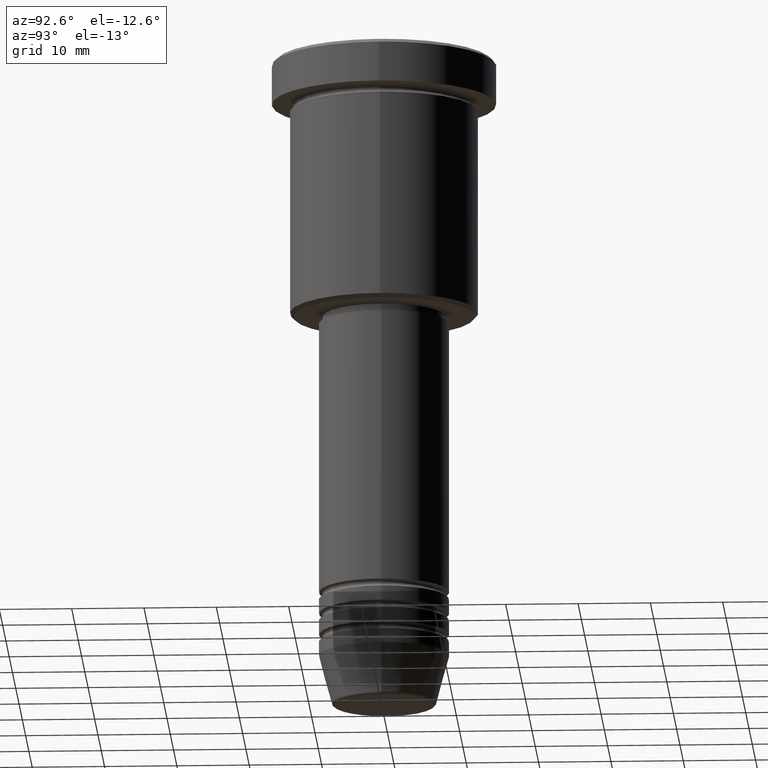
[diagram: clean part render]
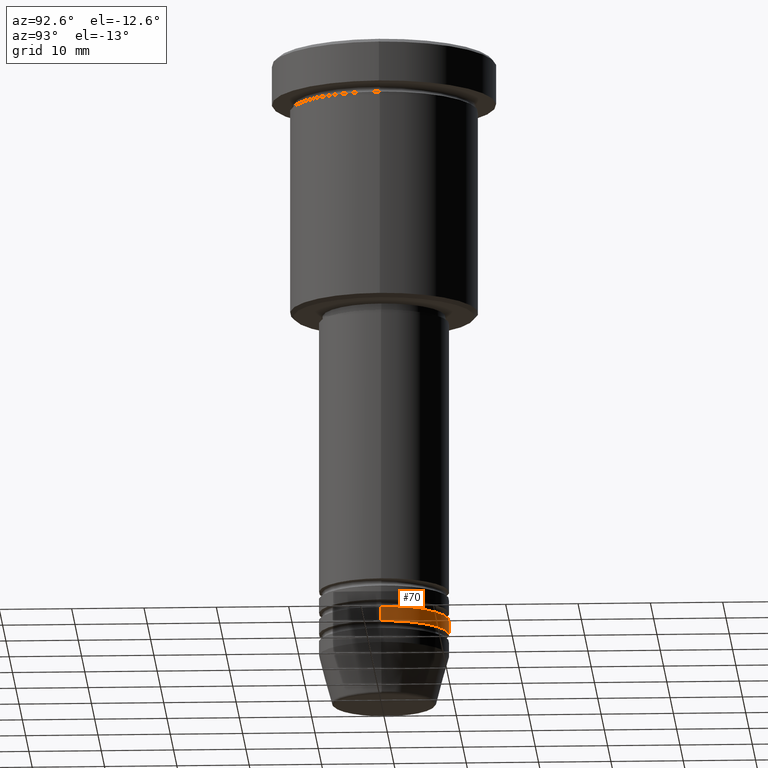
[diagram: same view with one face highlighted and labeled with its STEP entity id]
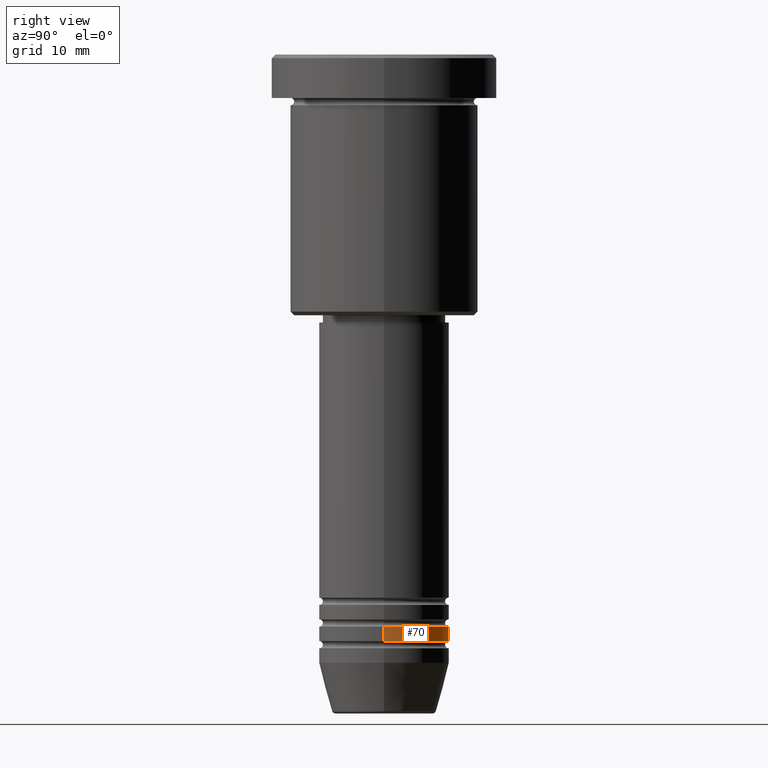
[diagram: same view with one face highlighted and labeled with its STEP entity id]
A machine part, auxiliary view. The second image highlights one B-rep face of the part: STEP entity #70.
A second angle (right view) of the same face is appended — the face is thin or edge-on in the first view.
In plain terms, the highlighted cylindrical surface (partial cylindrical patch) has radius 9 mm, axis along (-0, -0, 1).
Its self-contained STEP definition (entity closure, byte-faithful):
#9 = EDGE_CURVE ( 'NONE', #722, #741, #59, .T. ) ;
#47 = CYLINDRICAL_SURFACE ( 'NONE', #760, 9.000000000000000000 ) ;
#59 = LINE ( 'NONE', #595, #306 ) ;
#70 = ADVANCED_FACE ( 'NONE', ( #425 ), #47, .T. ) ;
#122 = DIRECTION ( 'NONE',  ( 1.000000000000000000, 0.000000000000000000, 0.000000000000000000 ) ) ;
#158 = DIRECTION ( 'NONE',  ( -0.000000000000000000, -0.000000000000000000, 1.000000000000000000 ) ) ;
#178 = ORIENTED_EDGE ( 'NONE', *, *, #905, .F. ) ;
#181 = EDGE_CURVE ( 'NONE', #1047, #904, #981, .T. ) ;
#204 = AXIS2_PLACEMENT_3D ( 'NONE', #243, #1174, #606 ) ;
#243 = CARTESIAN_POINT ( 'NONE',  ( 0.000000000000000000, 0.000000000000000000, -78.99999999999997158 ) ) ;
#260 = EDGE_CURVE ( 'NONE', #1047, #722, #364, .T. ) ;
#289 = CARTESIAN_POINT ( 'NONE',  ( 0.000000000000000000, 0.000000000000000000, -80.99999999999997158 ) ) ;
#306 = VECTOR ( 'NONE', #693, 1000.000000000000000 ) ;
#362 = CARTESIAN_POINT ( 'NONE',  ( 9.000000000000000000, 0.000000000000000000, 0.000000000000000000 ) ) ;
#364 = CIRCLE ( 'NONE', #626, 9.000000000000000000 ) ;
#425 = FACE_OUTER_BOUND ( 'NONE', #814, .T. ) ;
#462 = CARTESIAN_POINT ( 'NONE',  ( 9.000000000000000000, 0.000000000000000000, -80.99999999999997158 ) ) ;
#473 = VECTOR ( 'NONE', #158, 1000.000000000000000 ) ;
#493 = CIRCLE ( 'NONE', #204, 9.000000000000000000 ) ;
#595 = CARTESIAN_POINT ( 'NONE',  ( -9.000000000000000000, 1.102182119232617714E-15, 0.000000000000000000 ) ) ;
#606 = DIRECTION ( 'NONE',  ( 1.000000000000000000, 0.000000000000000000, 0.000000000000000000 ) ) ;
#624 = ORIENTED_EDGE ( 'NONE', *, *, #181, .F. ) ;
#626 = AXIS2_PLACEMENT_3D ( 'NONE', #289, #830, #1119 ) ;
#693 = DIRECTION ( 'NONE',  ( -0.000000000000000000, -0.000000000000000000, 1.000000000000000000 ) ) ;
#722 = VERTEX_POINT ( 'NONE', #777 ) ;
#741 = VERTEX_POINT ( 'NONE', #971 ) ;
#760 = AXIS2_PLACEMENT_3D ( 'NONE', #1070, #949, #122 ) ;
#777 = CARTESIAN_POINT ( 'NONE',  ( -9.000000000000000000, 1.102182119232617714E-15, -80.99999999999997158 ) ) ;
#814 = EDGE_LOOP ( 'NONE', ( #944, #1000, #178, #624 ) ) ;
#830 = DIRECTION ( 'NONE',  ( -0.000000000000000000, -0.000000000000000000, 1.000000000000000000 ) ) ;
#904 = VERTEX_POINT ( 'NONE', #1183 ) ;
#905 = EDGE_CURVE ( 'NONE', #904, #741, #493, .T. ) ;
#944 = ORIENTED_EDGE ( 'NONE', *, *, #260, .T. ) ;
#949 = DIRECTION ( 'NONE',  ( -0.000000000000000000, -0.000000000000000000, 1.000000000000000000 ) ) ;
#971 = CARTESIAN_POINT ( 'NONE',  ( -9.000000000000000000, 1.102182119232617714E-15, -78.99999999999997158 ) ) ;
#981 = LINE ( 'NONE', #362, #473 ) ;
#1000 = ORIENTED_EDGE ( 'NONE', *, *, #9, .T. ) ;
#1047 = VERTEX_POINT ( 'NONE', #462 ) ;
#1070 = CARTESIAN_POINT ( 'NONE',  ( 0.000000000000000000, 0.000000000000000000, 0.000000000000000000 ) ) ;
#1119 = DIRECTION ( 'NONE',  ( 1.000000000000000000, 0.000000000000000000, 0.000000000000000000 ) ) ;
#1174 = DIRECTION ( 'NONE',  ( -0.000000000000000000, -0.000000000000000000, 1.000000000000000000 ) ) ;
#1183 = CARTESIAN_POINT ( 'NONE',  ( 9.000000000000000000, 0.000000000000000000, -78.99999999999997158 ) ) ;